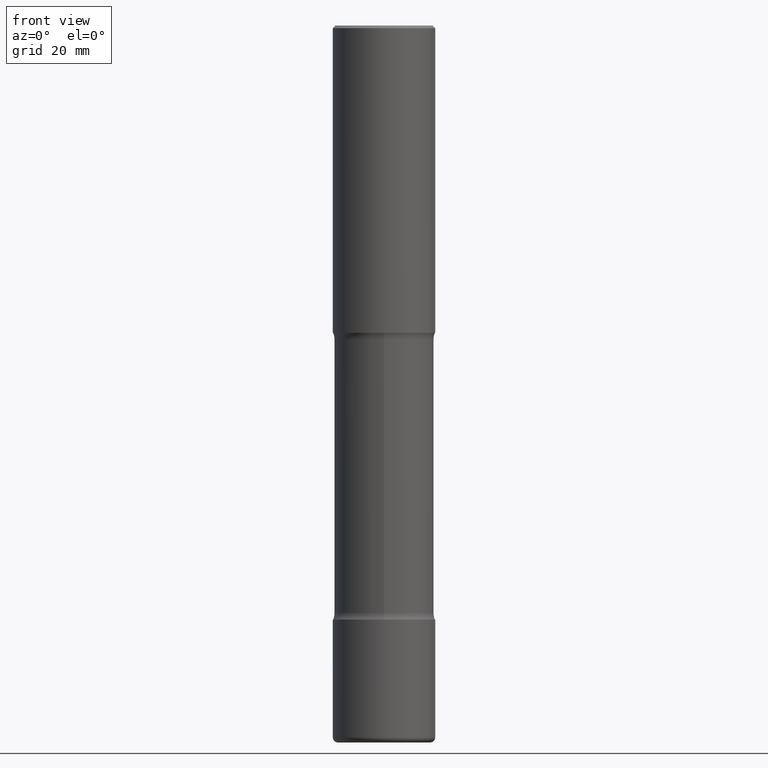
[diagram: clean part render]
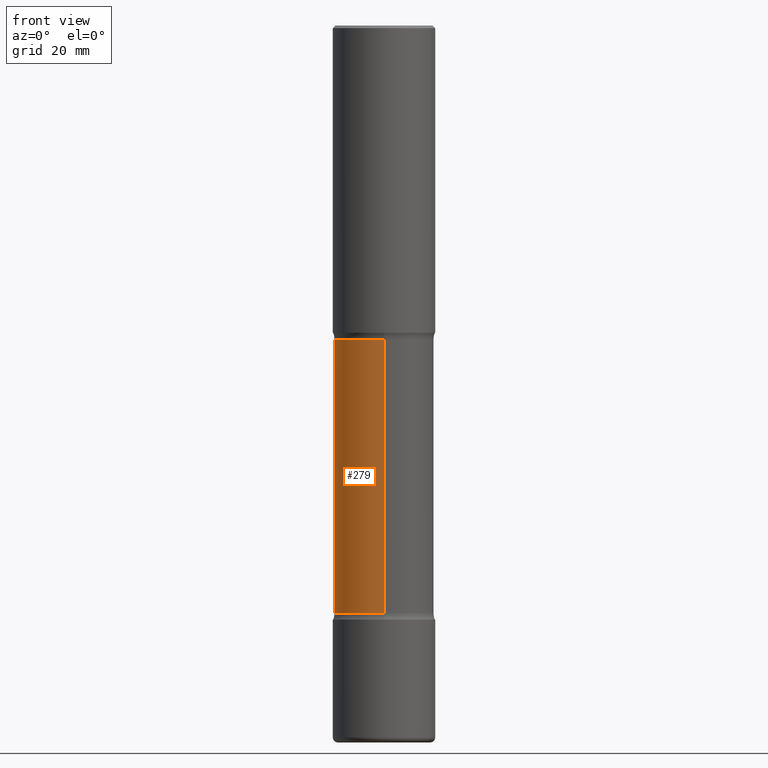
[diagram: same view with one face highlighted and labeled with its STEP entity id]
A machine part, front view. The second image highlights one B-rep face of the part: STEP entity #279.
In plain terms, the highlighted cylindrical surface (partial cylindrical patch) has radius 9.7409 mm, axis along (0, -0, -1).
Its self-contained STEP definition (entity closure, byte-faithful):
#1 = ORIENTED_EDGE ( 'NONE', *, *, #461, .T. ) ;
#12 = CARTESIAN_POINT ( 'NONE',  ( 2.677966186892794339E-15, 0.3834999999999843534, -4.517443352317409122 ) ) ;
#17 = DIRECTION ( 'NONE',  ( 2.540811743831259279E-29, -3.354944825550891508E-15, -1.000000000000000000 ) ) ;
#30 = VERTEX_POINT ( 'NONE', #304 ) ;
#48 = CIRCLE ( 'NONE', #456, 0.3835000000000002296 ) ;
#54 = LINE ( 'NONE', #402, #407 ) ;
#62 = DIRECTION ( 'NONE',  ( 2.540811743831259279E-29, -3.354944825550891508E-15, -1.000000000000000000 ) ) ;
#71 = DIRECTION ( 'NONE',  ( 6.982962677686265133E-15, 1.000000000000000000, -3.561731412860836552E-15 ) ) ;
#78 = CIRCLE ( 'NONE', #153, 0.3835000000000001741 ) ;
#131 = DIRECTION ( 'NONE',  ( 2.540811743831259279E-29, -3.354944825550891508E-15, -1.000000000000000000 ) ) ;
#153 = AXIS2_PLACEMENT_3D ( 'NONE', #409, #376, #371 ) ;
#177 = CARTESIAN_POINT ( 'NONE',  ( 5.692143870584579365E-29, -8.714523593702518262E-15, -2.411656647682592247 ) ) ;
#192 = CYLINDRICAL_SURFACE ( 'NONE', #476, 0.3835000000000001741 ) ;
#199 = VERTEX_POINT ( 'NONE', #12 ) ;
#219 = VERTEX_POINT ( 'NONE', #242 ) ;
#226 = LINE ( 'NONE', #527, #435 ) ;
#232 = DIRECTION ( 'NONE',  ( 6.982962677686265133E-15, 1.000000000000000000, -2.849385130288669478E-15 ) ) ;
#242 = CARTESIAN_POINT ( 'NONE',  ( -2.665989521933963355E-15, -0.3835000000000089448, -2.411656647682590915 ) ) ;
#279 = ADVANCED_FACE ( 'NONE', ( #413 ), #192, .T. ) ;
#287 = EDGE_CURVE ( 'NONE', #541, #199, #78, .T. ) ;
#304 = CARTESIAN_POINT ( 'NONE',  ( 2.677966186892741091E-15, 0.3834999999999914588, -2.411656647682594024 ) ) ;
#350 = EDGE_CURVE ( 'NONE', #30, #199, #226, .T. ) ;
#370 = EDGE_CURVE ( 'NONE', #219, #541, #54, .T. ) ;
#371 = DIRECTION ( 'NONE',  ( 6.982962677686265133E-15, 1.000000000000000000, -2.849385130288669478E-15 ) ) ;
#376 = DIRECTION ( 'NONE',  ( 2.540811743831259279E-29, -3.354944825550891508E-15, -1.000000000000000000 ) ) ;
#402 = CARTESIAN_POINT ( 'NONE',  ( -2.631000982145247058E-15, -0.3835000000000192699, -5.511799999999999145 ) ) ;
#407 = VECTOR ( 'NONE', #17, 39.37007874015748143 ) ;
#409 = CARTESIAN_POINT ( 'NONE',  ( 1.104255145972444542E-28, -1.577932180213095535E-14, -4.517443352317408234 ) ) ;
#410 = EDGE_LOOP ( 'NONE', ( #434, #1, #501, #536 ) ) ;
#413 = FACE_OUTER_BOUND ( 'NONE', #410, .T. ) ;
#434 = ORIENTED_EDGE ( 'NONE', *, *, #370, .F. ) ;
#435 = VECTOR ( 'NONE', #534, 39.37007874015748143 ) ;
#456 = AXIS2_PLACEMENT_3D ( 'NONE', #177, #131, #71 ) ;
#460 = CARTESIAN_POINT ( 'NONE',  ( 1.356902450771305887E-28, -1.911533349202580181E-14, -5.511800000000000033 ) ) ;
#461 = EDGE_CURVE ( 'NONE', #219, #30, #48, .T. ) ;
#476 = AXIS2_PLACEMENT_3D ( 'NONE', #460, #62, #232 ) ;
#501 = ORIENTED_EDGE ( 'NONE', *, *, #350, .T. ) ;
#512 = CARTESIAN_POINT ( 'NONE',  ( -2.665989521933907346E-15, -0.3835000000000159392, -4.517443352317407346 ) ) ;
#527 = CARTESIAN_POINT ( 'NONE',  ( 2.677966186892819583E-15, 0.3834999999999810227, -5.511800000000000921 ) ) ;
#534 = DIRECTION ( 'NONE',  ( 2.540811743831259279E-29, -3.354944825550891508E-15, -1.000000000000000000 ) ) ;
#536 = ORIENTED_EDGE ( 'NONE', *, *, #287, .F. ) ;
#541 = VERTEX_POINT ( 'NONE', #512 ) ;